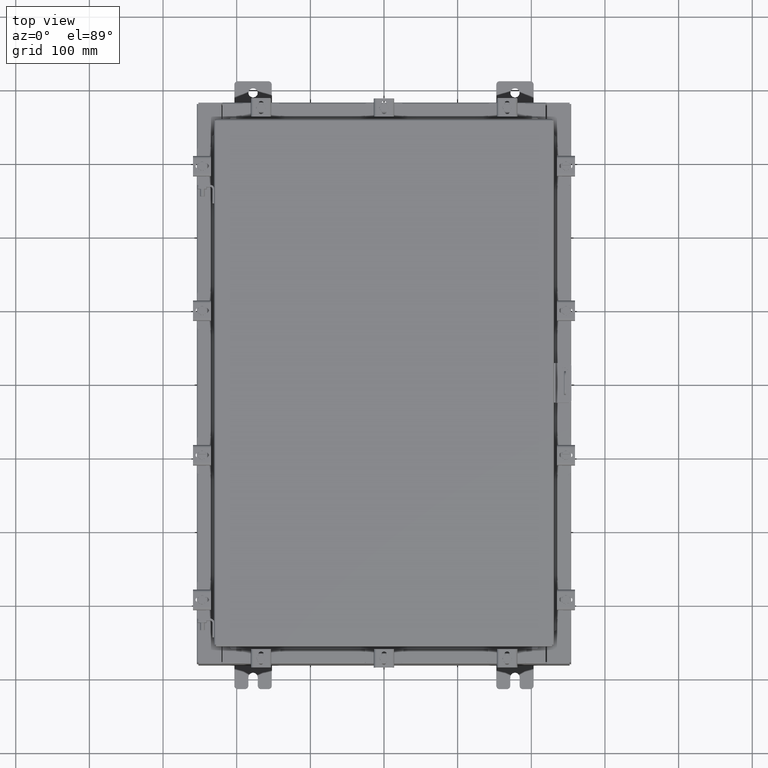
[diagram: clean part render]
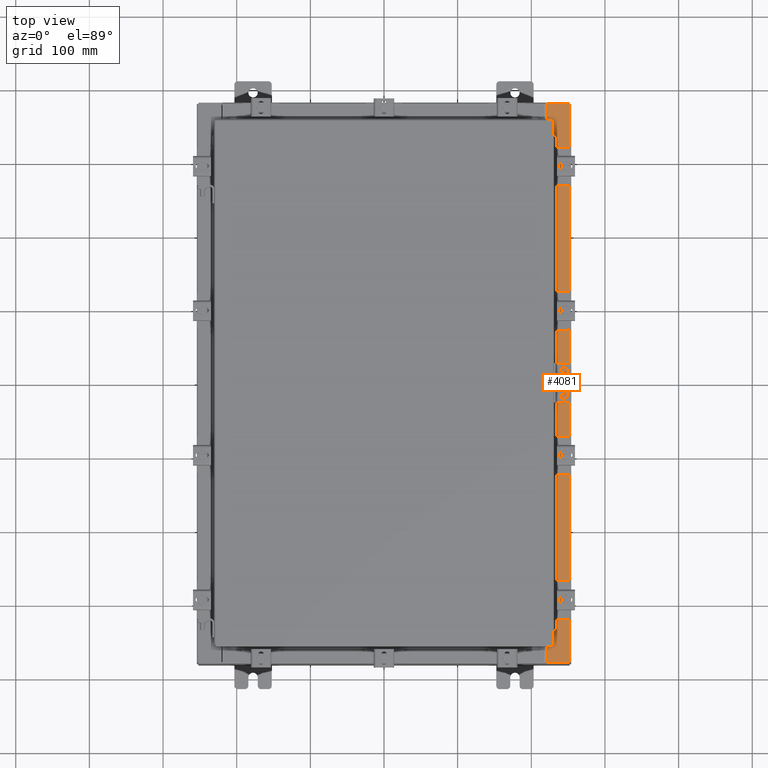
[diagram: same view with one face highlighted and labeled with its STEP entity id]
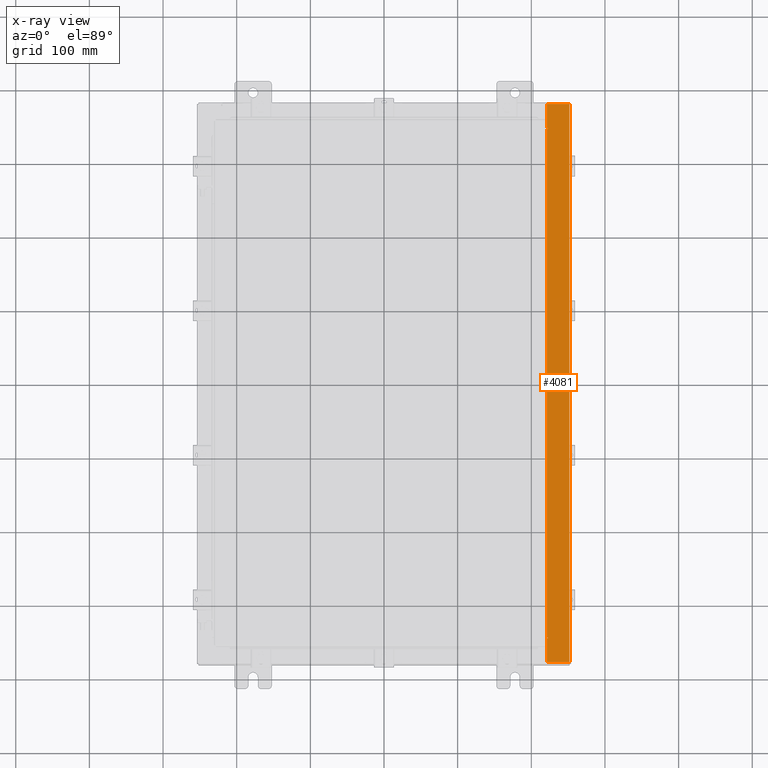
[diagram: x-ray of the same camera — body ghosted, the highlighted face saturated]
A machine part, top view. The second image highlights one B-rep face of the part: STEP entity #4081.
The next image is the same camera in x-ray: the body ghosted, the highlighted face saturated — about 0% of this face is hidden behind the body in this view.
In plain terms, the highlighted planar face has unit normal (-0, 0, -1).
Its self-contained STEP definition (entity closure, byte-faithful):
#12 = LINE ( 'NONE', #11797, #9588 ) ;
#104 = CARTESIAN_POINT ( 'NONE',  ( 8.699700000000019500, 13.63110000000000700, 5.925300000000009800 ) ) ;
#162 = CARTESIAN_POINT ( 'NONE',  ( 8.750050000000021200, 13.59375000000000900, 5.925300000000009800 ) ) ;
#176 = ORIENTED_EDGE ( 'NONE', *, *, #9446, .F. ) ;
#407 = LINE ( 'NONE', #2312, #9445 ) ;
#480 = VECTOR ( 'NONE', #12097, 39.37007874015748100 ) ;
#931 = ORIENTED_EDGE ( 'NONE', *, *, #10672, .F. ) ;
#947 = LINE ( 'NONE', #20061, #14705 ) ;
#974 = EDGE_CURVE ( 'NONE', #22215, #5632, #15452, .T. ) ;
#1019 = DIRECTION ( 'NONE',  ( 1.000000000000000000, 0.0000000000000000000, 0.0000000000000000000 ) ) ;
#1057 = LINE ( 'NONE', #16803, #480 ) ;
#1094 = VERTEX_POINT ( 'NONE', #19633 ) ;
#1354 = VERTEX_POINT ( 'NONE', #13156 ) ;
#1560 = AXIS2_PLACEMENT_3D ( 'NONE', #16011, #5285, #17840 ) ;
#2312 = CARTESIAN_POINT ( 'NONE',  ( 8.699700000000019500, -13.63109999999999800, 5.925300000000009800 ) ) ;
#3064 = CARTESIAN_POINT ( 'NONE',  ( 8.750050000000021200, 13.63110000000000700, 5.925300000000009800 ) ) ;
#3071 = LINE ( 'NONE', #14685, #21570 ) ;
#3204 = EDGE_CURVE ( 'NONE', #9497, #1094, #1057, .T. ) ;
#4081 = ADVANCED_FACE ( 'NONE', ( #4977 ), #21404, .F. ) ;
#4198 = VERTEX_POINT ( 'NONE', #104 ) ;
#4199 = VERTEX_POINT ( 'NONE', #6255 ) ;
#4251 = ORIENTED_EDGE ( 'NONE', *, *, #15764, .F. ) ;
#4703 = DIRECTION ( 'NONE',  ( -1.000000000000000000, 0.0000000000000000000, 7.132762385546378400E-015 ) ) ;
#4780 = ORIENTED_EDGE ( 'NONE', *, *, #18100, .T. ) ;
#4977 = FACE_OUTER_BOUND ( 'NONE', #15648, .T. ) ;
#5285 = DIRECTION ( 'NONE',  ( 7.132762385546378400E-015, 0.0000000000000000000, 1.000000000000000000 ) ) ;
#5592 = CARTESIAN_POINT ( 'NONE',  ( 8.699700000000019500, 0.0000000000000000000, 5.925300000000009800 ) ) ;
#5632 = VERTEX_POINT ( 'NONE', #21078 ) ;
#5732 = EDGE_CURVE ( 'NONE', #22452, #15004, #20072, .T. ) ;
#6255 = CARTESIAN_POINT ( 'NONE',  ( 8.750050000000021200, -13.63109999999999800, 5.925300000000009800 ) ) ;
#6621 = CARTESIAN_POINT ( 'NONE',  ( 9.912300000000019700, 14.92530000000000700, 5.925300000000001800 ) ) ;
#7591 = DIRECTION ( 'NONE',  ( -0.0000000000000000000, -1.000000000000000000, -0.0000000000000000000 ) ) ;
#8513 = DIRECTION ( 'NONE',  ( -1.000000000000000000, 0.0000000000000000000, 0.0000000000000000000 ) ) ;
#8686 = CARTESIAN_POINT ( 'NONE',  ( 6.913922522733892400E-014, -14.92530000000001400, 5.925300000000072800 ) ) ;
#9065 = VECTOR ( 'NONE', #8513, 39.37007874015748100 ) ;
#9106 = AXIS2_PLACEMENT_3D ( 'NONE', #19603, #19763, #19684 ) ;
#9183 = CARTESIAN_POINT ( 'NONE',  ( 8.699700000000019500, -13.63109999999999800, 5.925300000000009800 ) ) ;
#9426 = DIRECTION ( 'NONE',  ( 0.0000000000000000000, -1.000000000000000000, 0.0000000000000000000 ) ) ;
#9445 = VECTOR ( 'NONE', #13095, 39.37007874015748100 ) ;
#9446 = EDGE_CURVE ( 'NONE', #15004, #4198, #13798, .T. ) ;
#9497 = VERTEX_POINT ( 'NONE', #12363 ) ;
#9588 = VECTOR ( 'NONE', #1019, 39.37007874015748100 ) ;
#10245 = DIRECTION ( 'NONE',  ( 7.132762385546378400E-015, 0.0000000000000000000, 1.000000000000000000 ) ) ;
#10342 = CARTESIAN_POINT ( 'NONE',  ( 9.912300000000019700, -14.92529999999999800, 5.925300000000001800 ) ) ;
#10672 = EDGE_CURVE ( 'NONE', #22215, #12905, #3071, .T. ) ;
#10764 = VECTOR ( 'NONE', #4703, 39.37007874015748100 ) ;
#10908 = EDGE_CURVE ( 'NONE', #1354, #22452, #12, .T. ) ;
#11038 = DIRECTION ( 'NONE',  ( 0.0000000000000000000, -1.000000000000000000, 0.0000000000000000000 ) ) ;
#11070 = VECTOR ( 'NONE', #11038, 39.37007874015748100 ) ;
#11096 = EDGE_CURVE ( 'NONE', #20635, #12905, #21030, .T. ) ;
#11205 = ORIENTED_EDGE ( 'NONE', *, *, #11096, .T. ) ;
#11797 = CARTESIAN_POINT ( 'NONE',  ( 8.712700000000021200, 13.59375000000000900, 5.925300000000009800 ) ) ;
#12097 = DIRECTION ( 'NONE',  ( -1.000000000000000000, 0.0000000000000000000, 0.0000000000000000000 ) ) ;
#12363 = CARTESIAN_POINT ( 'NONE',  ( 8.750050000000021200, -13.59375000000000000, 5.925300000000009800 ) ) ;
#12495 = VERTEX_POINT ( 'NONE', #9183 ) ;
#12693 = AXIS2_PLACEMENT_3D ( 'NONE', #20914, #10245, #22668 ) ;
#12905 = VERTEX_POINT ( 'NONE', #10342 ) ;
#13095 = DIRECTION ( 'NONE',  ( 1.000000000000000000, 0.0000000000000000000, 0.0000000000000000000 ) ) ;
#13156 = CARTESIAN_POINT ( 'NONE',  ( 8.712700000000021200, 13.59375000000000900, 5.925300000000009800 ) ) ;
#13798 = LINE ( 'NONE', #3064, #9065 ) ;
#13864 = ORIENTED_EDGE ( 'NONE', *, *, #5732, .F. ) ;
#13916 = EDGE_CURVE ( 'NONE', #12495, #20635, #22266, .T. ) ;
#14225 = ORIENTED_EDGE ( 'NONE', *, *, #13916, .T. ) ;
#14510 = CARTESIAN_POINT ( 'NONE',  ( 8.750050000000021200, 13.63110000000000700, 5.925300000000009800 ) ) ;
#14661 = DIRECTION ( 'NONE',  ( -0.0000000000000000000, 1.000000000000000000, -0.0000000000000000000 ) ) ;
#14685 = CARTESIAN_POINT ( 'NONE',  ( 9.912300000000019700, -14.92529999999999800, 5.925300000000001800 ) ) ;
#14705 = VECTOR ( 'NONE', #14661, 39.37007874015748100 ) ;
#14809 = ORIENTED_EDGE ( 'NONE', *, *, #3204, .F. ) ;
#15004 = VERTEX_POINT ( 'NONE', #14510 ) ;
#15062 = EDGE_CURVE ( 'NONE', #1094, #1354, #947, .T. ) ;
#15116 = CARTESIAN_POINT ( 'NONE',  ( 8.699700000000019500, -14.92529999999999800, 5.925300000000009800 ) ) ;
#15452 = LINE ( 'NONE', #17880, #10764 ) ;
#15483 = ORIENTED_EDGE ( 'NONE', *, *, #974, .T. ) ;
#15542 = CIRCLE ( 'NONE', #12693, 0.01867499999999949400 ) ;
#15648 = EDGE_LOOP ( 'NONE', ( #4251, #14225, #11205, #931, #15483, #4780, #176, #13864, #18897, #21796, #14809, #16921 ) ) ;
#15727 = VECTOR ( 'NONE', #22979, 39.37007874015748100 ) ;
#15764 = EDGE_CURVE ( 'NONE', #12495, #4199, #407, .T. ) ;
#15810 = LINE ( 'NONE', #5592, #11070 ) ;
#16011 = CARTESIAN_POINT ( 'NONE',  ( 8.750050000000021200, 13.61242500000000900, 5.925300000000009800 ) ) ;
#16463 = EDGE_CURVE ( 'NONE', #4199, #9497, #15542, .T. ) ;
#16803 = CARTESIAN_POINT ( 'NONE',  ( 8.750050000000021200, -13.59375000000000000, 5.925300000000009800 ) ) ;
#16921 = ORIENTED_EDGE ( 'NONE', *, *, #16463, .F. ) ;
#17840 = DIRECTION ( 'NONE',  ( 1.000000000000000000, 0.0000000000000000000, 0.0000000000000000000 ) ) ;
#17880 = CARTESIAN_POINT ( 'NONE',  ( 4.252457061909005100E-014, 14.92530000000000500, 5.925300000000072800 ) ) ;
#18100 = EDGE_CURVE ( 'NONE', #5632, #4198, #15810, .T. ) ;
#18330 = CARTESIAN_POINT ( 'NONE',  ( 8.699700000000019500, 0.0000000000000000000, 5.925300000000009800 ) ) ;
#18897 = ORIENTED_EDGE ( 'NONE', *, *, #10908, .F. ) ;
#19603 = CARTESIAN_POINT ( 'NONE',  ( 4.252457061909005100E-014, 0.0000000000000000000, 5.925300000000072800 ) ) ;
#19633 = CARTESIAN_POINT ( 'NONE',  ( 8.712700000000021200, -13.59375000000000000, 5.925300000000009800 ) ) ;
#19684 = DIRECTION ( 'NONE',  ( -1.000000000000000000, 0.0000000000000000000, 7.132762385546378400E-015 ) ) ;
#19763 = DIRECTION ( 'NONE',  ( -7.132762385546378400E-015, 0.0000000000000000000, -1.000000000000000000 ) ) ;
#20061 = CARTESIAN_POINT ( 'NONE',  ( 8.712700000000021200, -13.59375000000000000, 5.925300000000009800 ) ) ;
#20072 = CIRCLE ( 'NONE', #1560, 0.01867499999999949400 ) ;
#20635 = VERTEX_POINT ( 'NONE', #15116 ) ;
#20914 = CARTESIAN_POINT ( 'NONE',  ( 8.750050000000021200, -13.61242500000000000, 5.925300000000009800 ) ) ;
#21030 = LINE ( 'NONE', #8686, #15727 ) ;
#21078 = CARTESIAN_POINT ( 'NONE',  ( 8.699700000000019500, 14.92530000000000700, 5.925300000000009800 ) ) ;
#21404 = PLANE ( 'NONE',  #9106 ) ;
#21570 = VECTOR ( 'NONE', #7591, 39.37007874015748100 ) ;
#21732 = VECTOR ( 'NONE', #9426, 39.37007874015748100 ) ;
#21796 = ORIENTED_EDGE ( 'NONE', *, *, #15062, .F. ) ;
#22215 = VERTEX_POINT ( 'NONE', #6621 ) ;
#22266 = LINE ( 'NONE', #18330, #21732 ) ;
#22452 = VERTEX_POINT ( 'NONE', #162 ) ;
#22668 = DIRECTION ( 'NONE',  ( 1.000000000000000000, 0.0000000000000000000, 0.0000000000000000000 ) ) ;
#22979 = DIRECTION ( 'NONE',  ( 1.000000000000000000, 1.783190596386595000E-015, -7.132762385546378400E-015 ) ) ;